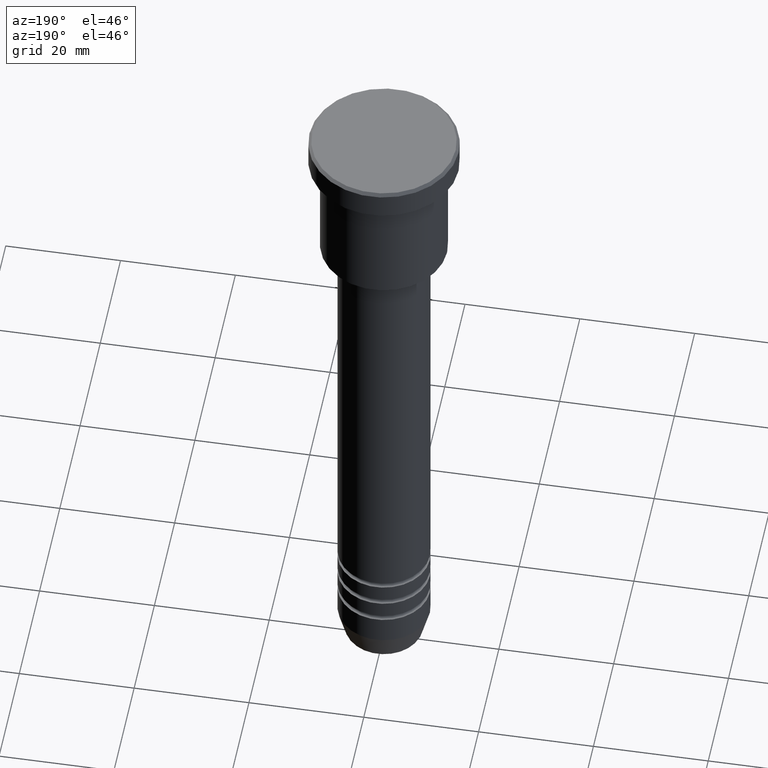
[diagram: clean part render]
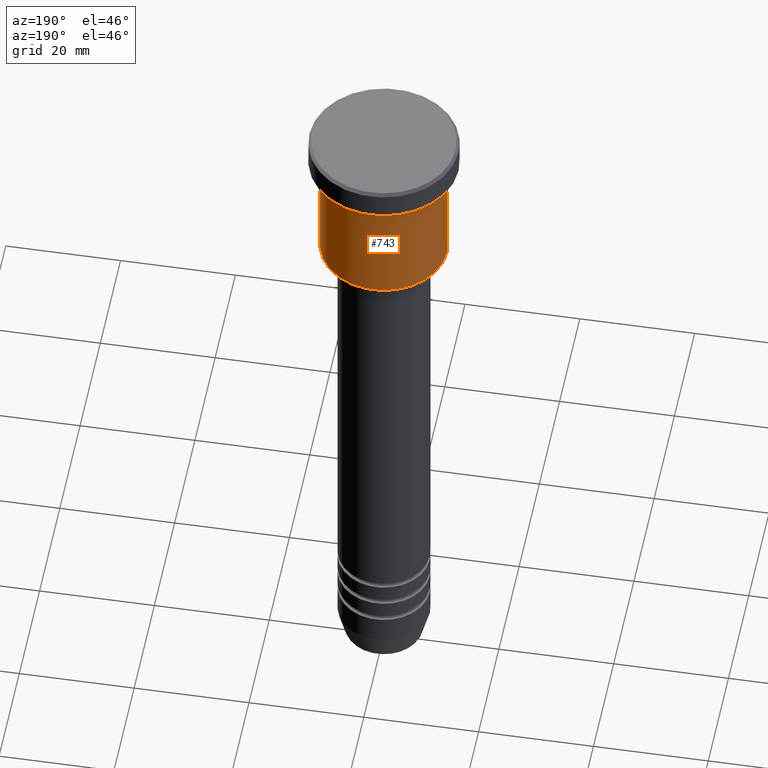
[diagram: same view with one face highlighted and labeled with its STEP entity id]
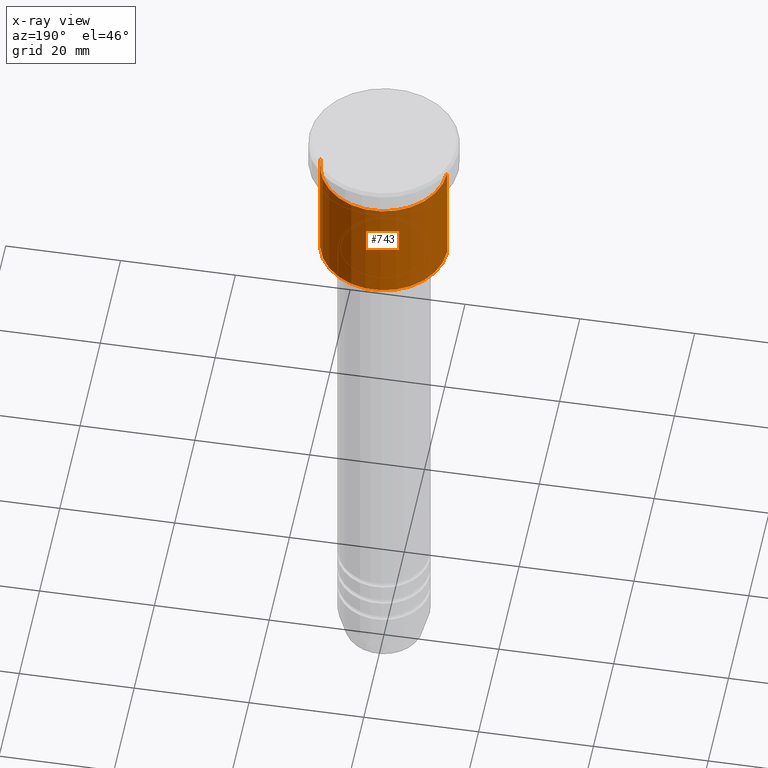
[diagram: x-ray of the same camera — body ghosted, the highlighted face saturated]
A machine part, auxiliary view. The second image highlights one B-rep face of the part: STEP entity #743.
The next image is the same camera in x-ray: the body ghosted, the highlighted face saturated — about 0% of this face is hidden behind the body in this view.
In plain terms, the highlighted cylindrical surface (partial cylindrical patch) has radius 11 mm, axis along (-0, -0, 1).
Its self-contained STEP definition (entity closure, byte-faithful):
#26 = ORIENTED_EDGE ( 'NONE', *, *, #967, .T. ) ;
#30 = CARTESIAN_POINT ( 'NONE',  ( 11.00000000000000000, 0.000000000000000000, 0.000000000000000000 ) ) ;
#89 = AXIS2_PLACEMENT_3D ( 'NONE', #566, #104, #1096 ) ;
#102 = DIRECTION ( 'NONE',  ( -0.000000000000000000, -0.000000000000000000, 1.000000000000000000 ) ) ;
#104 = DIRECTION ( 'NONE',  ( -0.000000000000000000, -0.000000000000000000, 1.000000000000000000 ) ) ;
#113 = VECTOR ( 'NONE', #781, 1000.000000000000000 ) ;
#151 = VECTOR ( 'NONE', #102, 1000.000000000000000 ) ;
#166 = CIRCLE ( 'NONE', #1109, 11.00000000000000000 ) ;
#180 = VERTEX_POINT ( 'NONE', #1161 ) ;
#191 = CIRCLE ( 'NONE', #1181, 11.00000000000000000 ) ;
#198 = VERTEX_POINT ( 'NONE', #723 ) ;
#323 = DIRECTION ( 'NONE',  ( 1.000000000000000000, 0.000000000000000000, 0.000000000000000000 ) ) ;
#447 = CYLINDRICAL_SURFACE ( 'NONE', #89, 11.00000000000000000 ) ;
#449 = EDGE_CURVE ( 'NONE', #540, #198, #166, .T. ) ;
#461 = VERTEX_POINT ( 'NONE', #879 ) ;
#500 = DIRECTION ( 'NONE',  ( -1.000000000000000000, 0.000000000000000000, 0.000000000000000000 ) ) ;
#512 = CARTESIAN_POINT ( 'NONE',  ( 0.000000000000000000, 0.000000000000000000, -25.49999999999997513 ) ) ;
#540 = VERTEX_POINT ( 'NONE', #579 ) ;
#562 = LINE ( 'NONE', #656, #151 ) ;
#566 = CARTESIAN_POINT ( 'NONE',  ( 0.000000000000000000, 0.000000000000000000, 0.000000000000000000 ) ) ;
#579 = CARTESIAN_POINT ( 'NONE',  ( 11.00000000000000000, 0.000000000000000000, -25.49999999999997513 ) ) ;
#595 = ORIENTED_EDGE ( 'NONE', *, *, #852, .F. ) ;
#596 = CARTESIAN_POINT ( 'NONE',  ( 0.000000000000000000, 0.000000000000000000, -5.999999999999999112 ) ) ;
#606 = ORIENTED_EDGE ( 'NONE', *, *, #835, .F. ) ;
#656 = CARTESIAN_POINT ( 'NONE',  ( -11.00000000000000000, 1.347111479062088405E-15, 0.000000000000000000 ) ) ;
#723 = CARTESIAN_POINT ( 'NONE',  ( -11.00000000000000000, 1.347111479062088405E-15, -25.49999999999997513 ) ) ;
#743 = ADVANCED_FACE ( 'NONE', ( #1090 ), #447, .T. ) ;
#762 = DIRECTION ( 'NONE',  ( -0.000000000000000000, -0.000000000000000000, 1.000000000000000000 ) ) ;
#766 = ORIENTED_EDGE ( 'NONE', *, *, #449, .T. ) ;
#781 = DIRECTION ( 'NONE',  ( -0.000000000000000000, -0.000000000000000000, 1.000000000000000000 ) ) ;
#835 = EDGE_CURVE ( 'NONE', #461, #180, #191, .T. ) ;
#852 = EDGE_CURVE ( 'NONE', #540, #461, #875, .T. ) ;
#875 = LINE ( 'NONE', #30, #113 ) ;
#879 = CARTESIAN_POINT ( 'NONE',  ( 11.00000000000000000, 0.000000000000000000, -5.999999999999999112 ) ) ;
#967 = EDGE_CURVE ( 'NONE', #198, #180, #562, .T. ) ;
#1054 = EDGE_LOOP ( 'NONE', ( #766, #26, #606, #595 ) ) ;
#1055 = DIRECTION ( 'NONE',  ( -0.000000000000000000, -0.000000000000000000, 1.000000000000000000 ) ) ;
#1090 = FACE_OUTER_BOUND ( 'NONE', #1054, .T. ) ;
#1096 = DIRECTION ( 'NONE',  ( 1.000000000000000000, 0.000000000000000000, 0.000000000000000000 ) ) ;
#1109 = AXIS2_PLACEMENT_3D ( 'NONE', #512, #1055, #500 ) ;
#1161 = CARTESIAN_POINT ( 'NONE',  ( -11.00000000000000000, 1.347111479062088405E-15, -5.999999999999999112 ) ) ;
#1181 = AXIS2_PLACEMENT_3D ( 'NONE', #596, #762, #323 ) ;